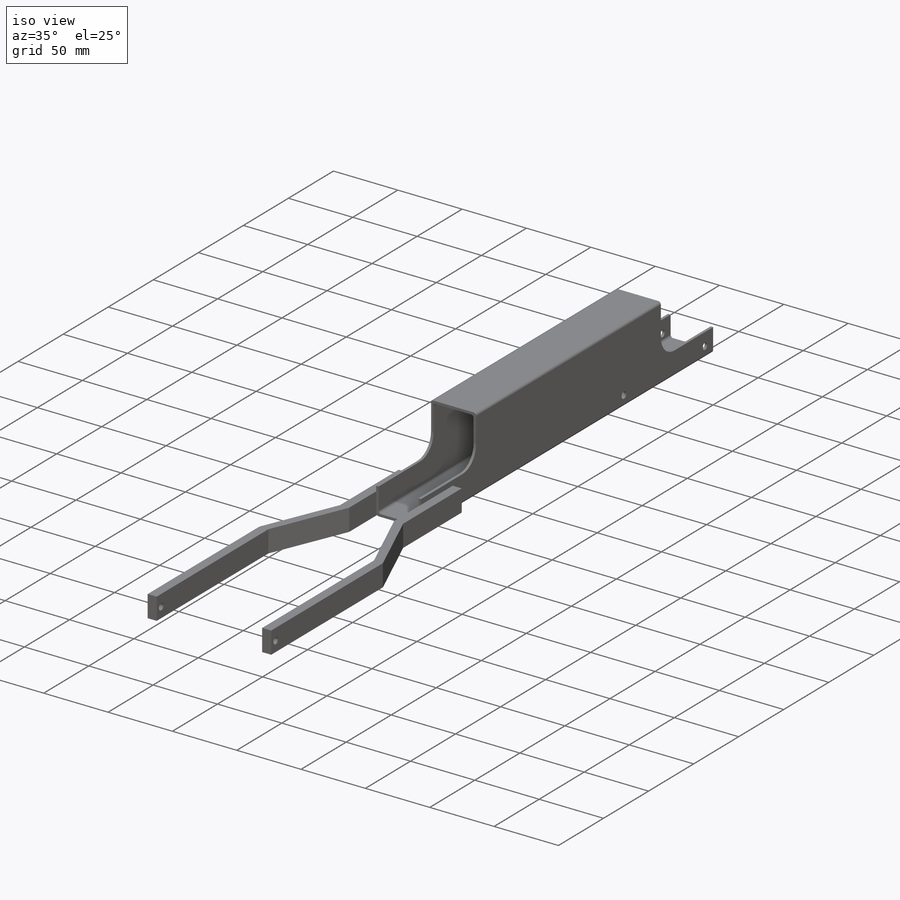
[diagram: iso view]
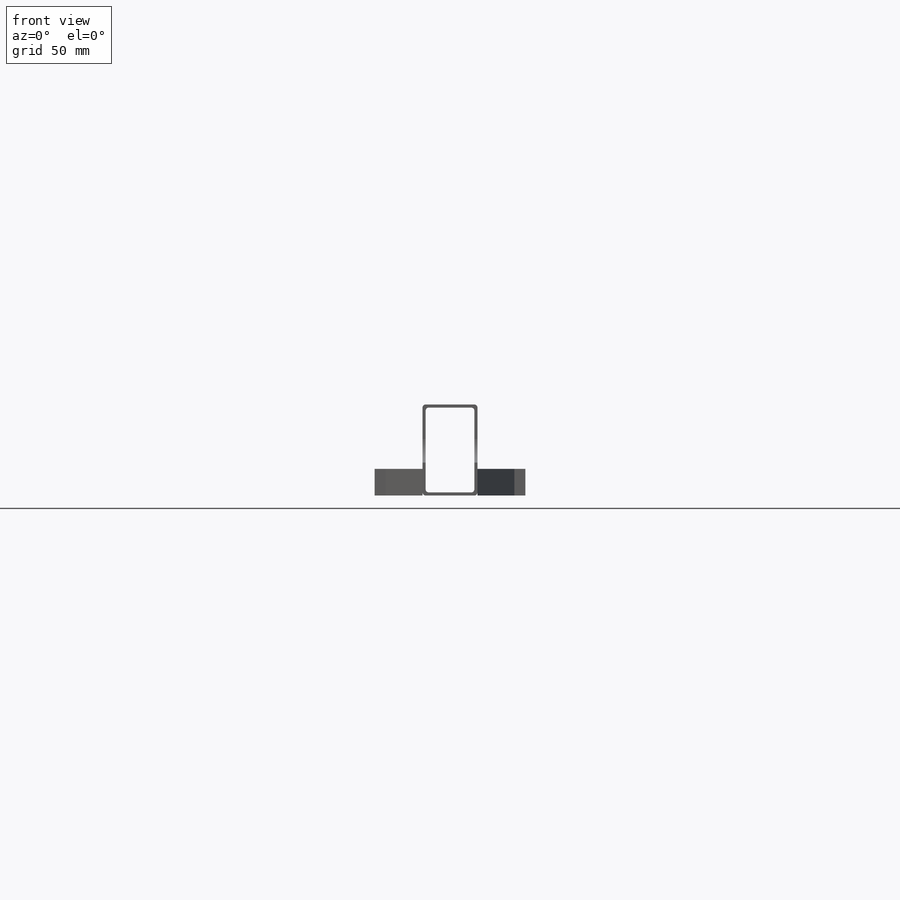
[diagram: front view]
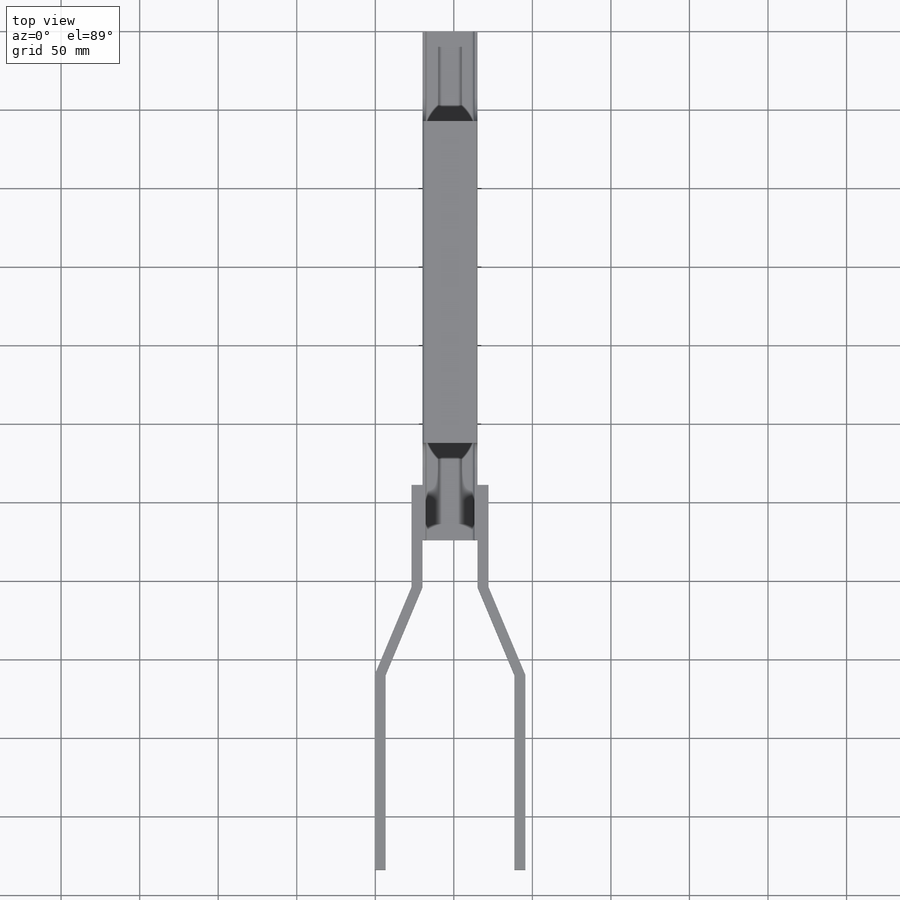
[diagram: top view]
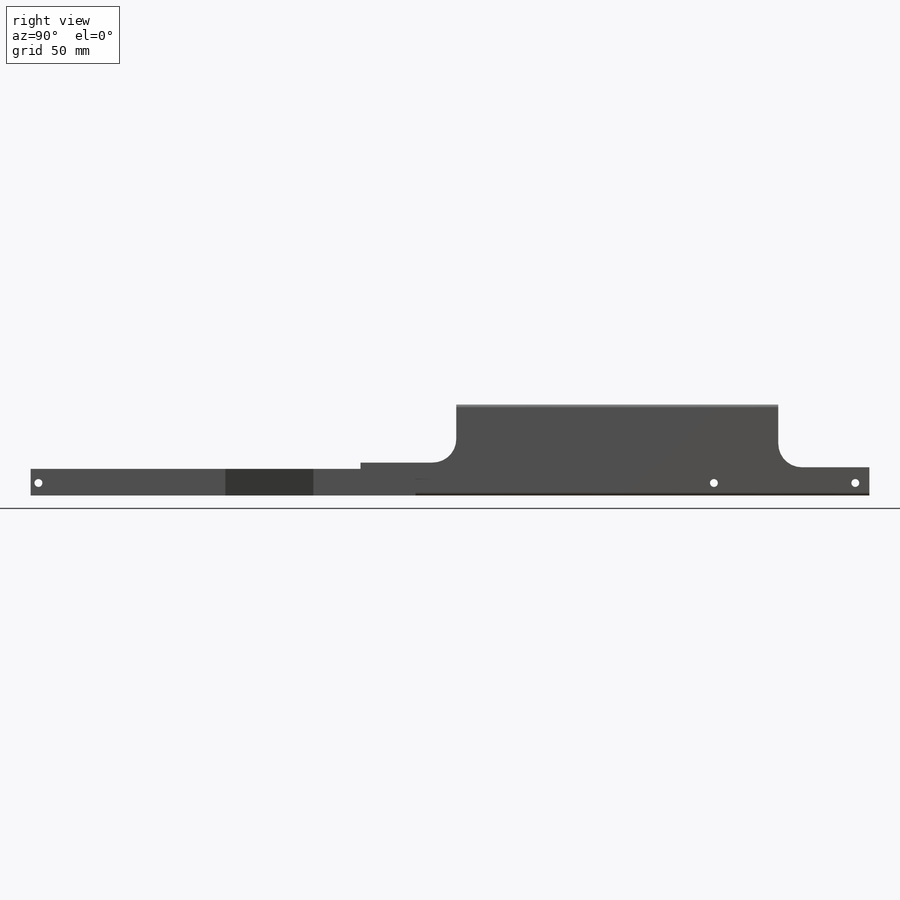
[diagram: right view]
SOLIDWORKS PART (.sldprt)
format: sldprt  version: not decoded by parser v0  size: 279,040 bytes
history: native  units: mm
features: sketch x4, extrude x2, cut_extrude x2, material x1 (+16 scaffold rows collapsed)
feature tree (25):
  scaffold x16  (default folders/planes/origin — collapsed)
  material  "Material <not specified>"
  sketch  "Sketch1"  dims[D7=2.0mm D1=58.0mm D2=35.0mm D3=2.0mm D4=2.0mm D5=2.0mm D6=2.0mm]
  extrude  "Extrude1"  Depth=324mm
  sketch  "Sketch2"  dims[D4=5.0mm D5=5.0mm D11=15.0mm D1=58.0mm D2=40.0mm D3=8.0mm D6=8.0mm D7=9.0mm D8=99.0mm D9=61.0mm D10=37.0mm]
  cut_extrude  "Extrude2"  [1 undecoded]
  sketch  "Sketch3"  dims[D1=7.0mm D2=7.0mm D3=35.0mm D4=35.0mm D5=35.0mm D6=7.0mm D7=7.0mm D8=30.0mm D9=30.0mm D10=30.0mm D11=30.0mm D12=23.5mm D13=23.5mm D14=534.0mm D15=534.0mm D16=35.0mm D17=56.0mm D18=56.0mm D19=56.0mm D20=56.0mm]
  extrude  "Extrude3"  Depth=17mm
  sketch  "Sketch4"  dims[D2=5.0mm D1=8.0mm D3=5.0mm]
  cut_extrude  "Extrude4"  [1 undecoded]
decode coverage: 6 of 8 modeling features carry decoded parameters
note: 2 parameter values undecoded
note: suppression state not decoded; provenance and decode notes live in map.json
